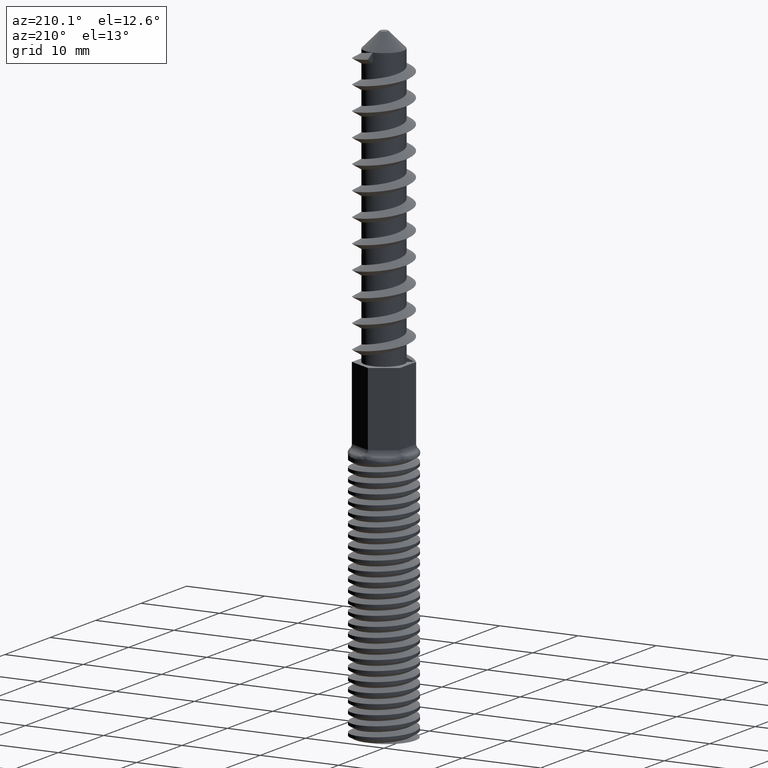
[diagram: clean part render]
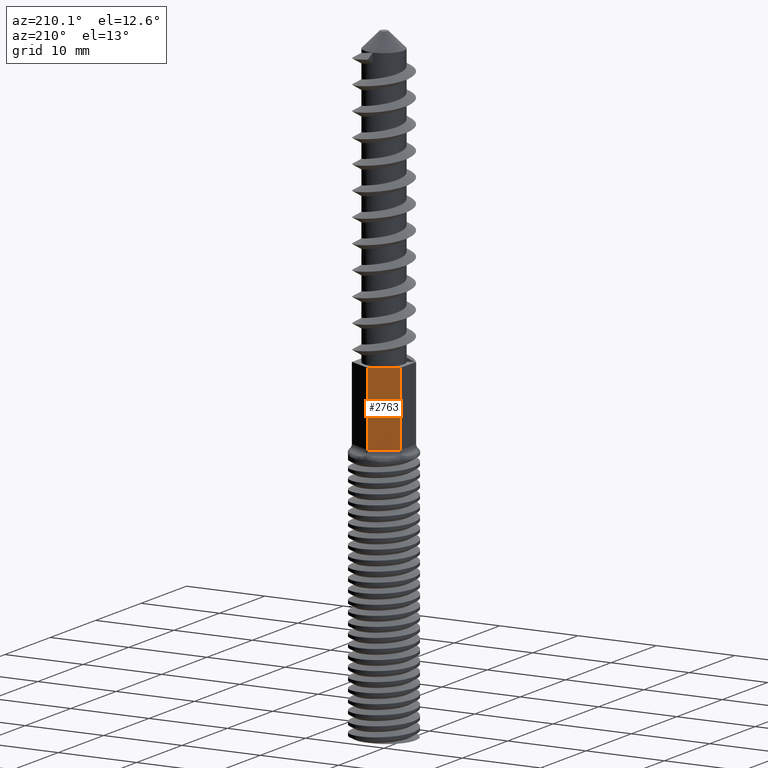
[diagram: same view with one face highlighted and labeled with its STEP entity id]
A machine part, auxiliary view. The second image highlights one B-rep face of the part: STEP entity #2763.
In plain terms, the highlighted planar face has unit normal (0.5, -0.866, 0).
Its self-contained STEP definition (entity closure, byte-faithful):
#920 = ORIENTED_EDGE ( 'NONE', *, *, #17304, .T. ) ;
#1038 = DIRECTION ( 'NONE',  ( -0.0000000000000000000, -0.0000000000000000000, 1.000000000000000000 ) ) ;
#1584 = VERTEX_POINT ( 'NONE', #6707 ) ;
#1834 = CARTESIAN_POINT ( 'NONE',  ( -3.074390183434749800, 1.775000000000014600, -47.50000000000000000 ) ) ;
#2430 = VECTOR ( 'NONE', #16029, 1000.000000000000000 ) ;
#2722 = VERTEX_POINT ( 'NONE', #3036 ) ;
#2763 = ADVANCED_FACE ( 'NONE', ( #16795 ), #11581, .F. ) ;
#2961 = VERTEX_POINT ( 'NONE', #17434 ) ;
#3036 = CARTESIAN_POINT ( 'NONE',  ( 2.478951750578625300E-014, 3.550000000000001200, -37.50000000000000000 ) ) ;
#3140 = LINE ( 'NONE', #9390, #14641 ) ;
#3273 = CARTESIAN_POINT ( 'NONE',  ( -3.074390183434749800, 1.775000000000014600, -46.79289321881346100 ) ) ;
#3749 = CARTESIAN_POINT ( 'NONE',  ( -2.049593455623211800, 2.366666666666645800, -46.79289321881345400 ) ) ;
#3873 = EDGE_CURVE ( 'NONE', #4553, #1584, #9844, .T. ) ;
#4123 = DIRECTION ( 'NONE',  ( 0.8660254037844415900, 0.4999999999999950600, 0.0000000000000000000 ) ) ;
#4553 = VERTEX_POINT ( 'NONE', #3273 ) ;
#4717 = DIRECTION ( 'NONE',  ( 0.8660254037844415900, 0.4999999999999950600, 0.0000000000000000000 ) ) ;
#6387 = CARTESIAN_POINT ( 'NONE',  ( -3.074390183434749800, 1.775000000000014600, -47.50000000000000000 ) ) ;
#6707 = CARTESIAN_POINT ( 'NONE',  ( -3.074390183434749800, 1.775000000000014600, -37.50000000000000000 ) ) ;
#9015 = VECTOR ( 'NONE', #4123, 1000.000000000000000 ) ;
#9290 = ORIENTED_EDGE ( 'NONE', *, *, #14559, .T. ) ;
#9390 = CARTESIAN_POINT ( 'NONE',  ( 2.478951750578625300E-014, 3.550000000000001200, -47.50000000000000000 ) ) ;
#9844 = LINE ( 'NONE', #6387, #2430 ) ;
#10233 = EDGE_CURVE ( 'NONE', #2961, #2722, #3140, .T. ) ;
#11506 = AXIS2_PLACEMENT_3D ( 'NONE', #1834, #12973, #4717 ) ;
#11581 = PLANE ( 'NONE',  #11506 ) ;
#12248 = B_SPLINE_CURVE_WITH_KNOTS ( 'NONE', 3,
 ( #16145, #14774, #3749, #13450 ),
 .UNSPECIFIED., .F., .F.,
 ( 4, 4 ),
 ( 0.0000000000000000000, 1.000000000000000000 ),
 .UNSPECIFIED. ) ;
#12273 = LINE ( 'NONE', #16499, #9015 ) ;
#12295 = EDGE_LOOP ( 'NONE', ( #17719, #9290, #16419, #920 ) ) ;
#12973 = DIRECTION ( 'NONE',  ( 0.4999999999999950600, -0.8660254037844415900, 0.0000000000000000000 ) ) ;
#13450 = CARTESIAN_POINT ( 'NONE',  ( -3.074390183434749800, 1.775000000000014600, -46.79289321881346100 ) ) ;
#14559 = EDGE_CURVE ( 'NONE', #2961, #4553, #12248, .T. ) ;
#14641 = VECTOR ( 'NONE', #1038, 1000.000000000000000 ) ;
#14774 = CARTESIAN_POINT ( 'NONE',  ( -1.024796727811770000, 2.958333333333221600, -46.79289321881346100 ) ) ;
#16029 = DIRECTION ( 'NONE',  ( -0.0000000000000000000, -0.0000000000000000000, 1.000000000000000000 ) ) ;
#16145 = CARTESIAN_POINT ( 'NONE',  ( 2.478951750578625300E-014, 3.550000000000001200, -46.79289321881344000 ) ) ;
#16419 = ORIENTED_EDGE ( 'NONE', *, *, #3873, .T. ) ;
#16499 = CARTESIAN_POINT ( 'NONE',  ( -3.074390183434749800, 1.775000000000014600, -37.50000000000000000 ) ) ;
#16795 = FACE_OUTER_BOUND ( 'NONE', #12295, .T. ) ;
#17304 = EDGE_CURVE ( 'NONE', #1584, #2722, #12273, .T. ) ;
#17434 = CARTESIAN_POINT ( 'NONE',  ( 2.478951750578625300E-014, 3.550000000000001200, -46.79289321881344000 ) ) ;
#17719 = ORIENTED_EDGE ( 'NONE', *, *, #10233, .F. ) ;